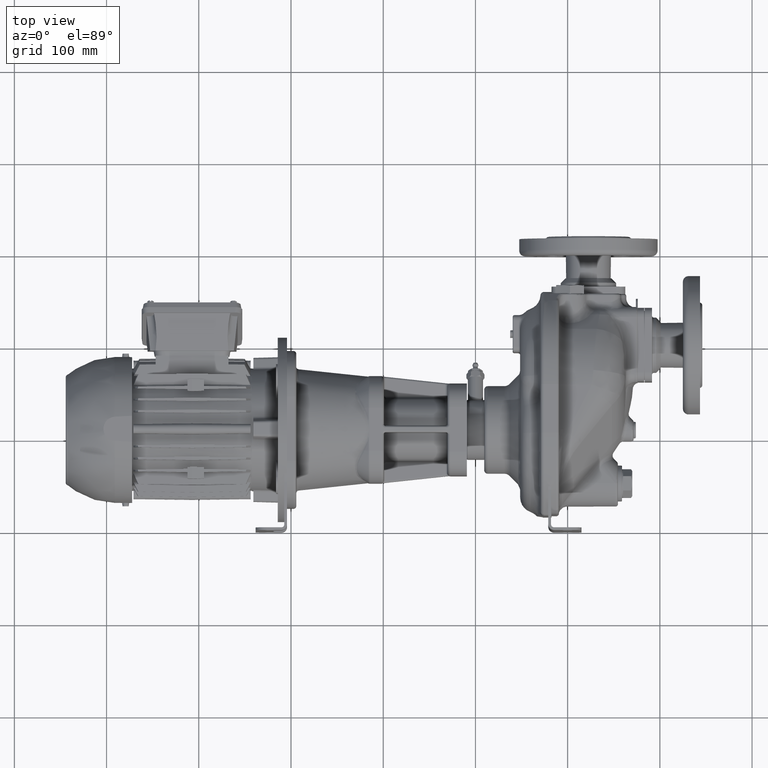
[diagram: clean part render]
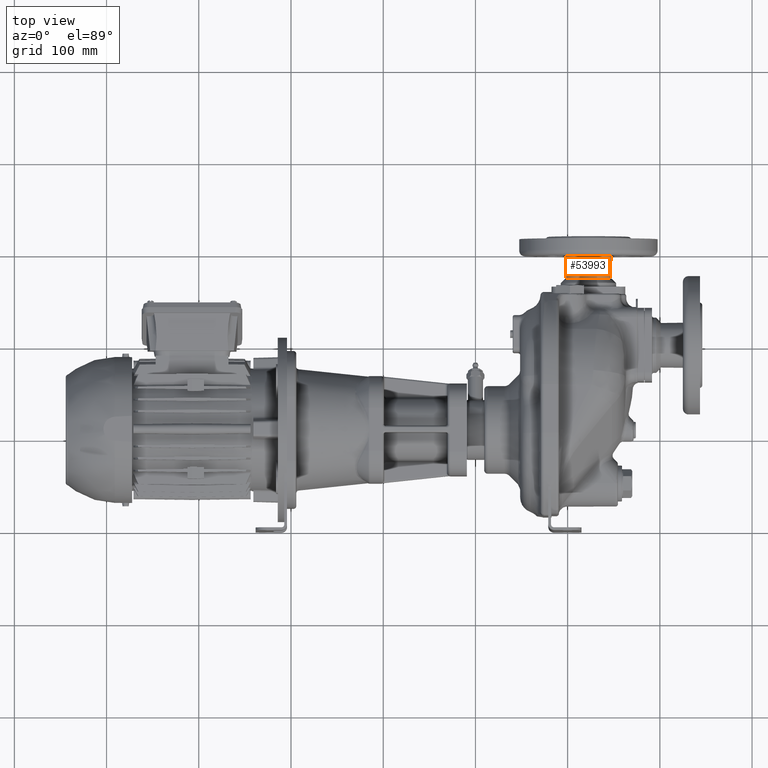
[diagram: same view with one face highlighted and labeled with its STEP entity id]
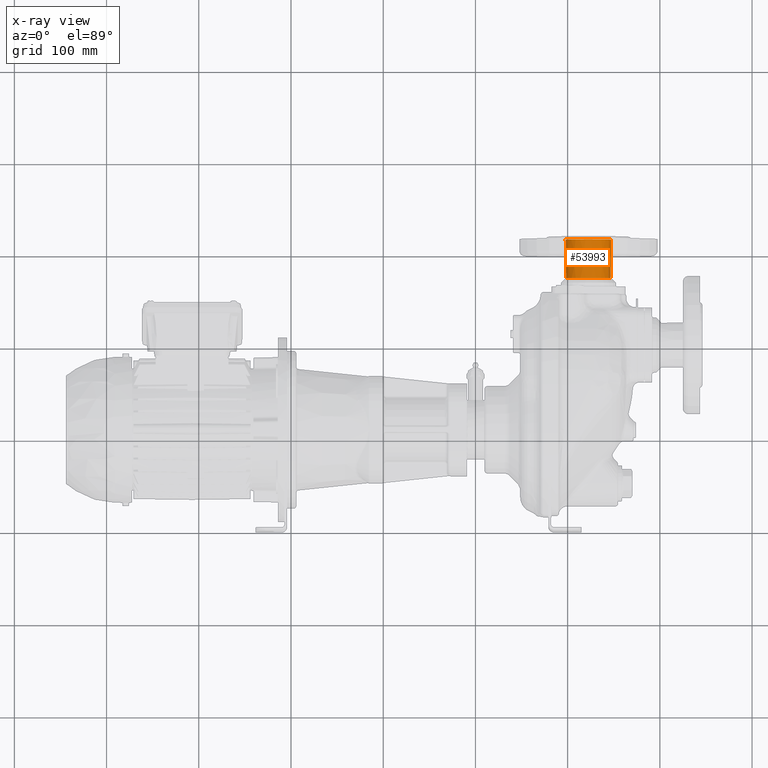
[diagram: x-ray of the same camera — body ghosted, the highlighted face saturated]
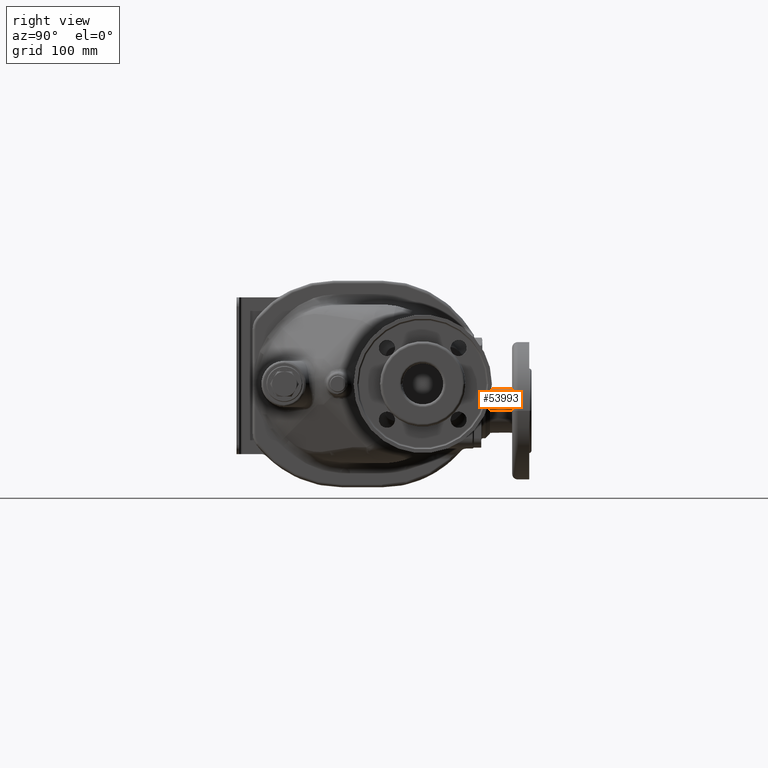
[diagram: same view with one face highlighted and labeled with its STEP entity id]
A machine part, top view. The second image highlights one B-rep face of the part: STEP entity #53993.
The next image is the same camera in x-ray: the body ghosted, the highlighted face saturated — about 0% of this face is hidden behind the body in this view.
A second angle (right view) of the same face is appended — the face is thin or edge-on in the first view.
In plain terms, the highlighted conical surface has half-angle 0.682 deg.
Its self-contained STEP definition (entity closure, byte-faithful):
#6773=CARTESIAN_POINT('',(2.25E1,2.75E2,-3.8E1));
#6774=DIRECTION('',(0.E0,1.E0,0.E0));
#6775=DIRECTION('',(-1.E0,0.E0,0.E0));
#6776=AXIS2_PLACEMENT_3D('',#6773,#6774,#6775);
#6783=CARTESIAN_POINT('',(2.25E1,3.170059515376E2,-3.8E1));
#6784=DIRECTION('',(0.E0,1.E0,0.E0));
#6785=DIRECTION('',(-1.E0,0.E0,0.E0));
#6786=AXIS2_PLACEMENT_3D('',#6783,#6784,#6785);
#6788=DIRECTION('',(-1.190307514028E-2,-9.999291558917E-1,0.E0));
#6789=VECTOR('',#6788,4.200892762259E1);
#6790=CARTESIAN_POINT('',(4.715003542205E1,3.170059515376E2,-3.8E1));
#6791=LINE('',#6790,#6789);
#6797=DIRECTION('',(1.190307514028E-2,-9.999291558917E-1,0.E0));
#6798=VECTOR('',#6797,4.200892762259E1);
#6799=CARTESIAN_POINT('',(-2.150035422054E0,3.170059515376E2,-3.8E1));
#6800=LINE('',#6799,#6798);
#40222=CARTESIAN_POINT('',(-2.150035422054E0,3.170059515376E2,-3.8E1));
#40224=VERTEX_POINT('',#40222);
#40234=CARTESIAN_POINT('',(4.715003542205E1,3.170059515376E2,-3.8E1));
#40236=VERTEX_POINT('',#40234);
#40333=CARTESIAN_POINT('',(-1.65E0,2.75E2,-3.8E1));
#40334=CARTESIAN_POINT('',(4.665E1,2.75E2,-3.8E1));
#40335=VERTEX_POINT('',#40333);
#40336=VERTEX_POINT('',#40334);
#53979=CARTESIAN_POINT('',(2.25E1,2.960029757688E2,-3.8E1));
#53980=DIRECTION('',(0.E0,1.E0,0.E0));
#53981=DIRECTION('',(1.E0,0.E0,0.E0));
#53982=AXIS2_PLACEMENT_3D('',#53979,#53980,#53981);
#53983=CONICAL_SURFACE('',#53982,2.440001771103E1,6.820120743535E-1);
#53984=ORIENTED_EDGE('',*,*,#53972,.F.);
#53986=ORIENTED_EDGE('',*,*,#53985,.F.);
#53988=ORIENTED_EDGE('',*,*,#53987,.T.);
#53990=ORIENTED_EDGE('',*,*,#53989,.T.);
#53991=EDGE_LOOP('',(#53984,#53986,#53988,#53990));
#53992=FACE_OUTER_BOUND('',#53991,.F.);
#53993=ADVANCED_FACE('',(#53992),#53983,.T.);
#6777=CIRCLE('',#6776,2.415E1);
#6787=CIRCLE('',#6786,2.465003542205E1);
#53972=EDGE_CURVE('',#40335,#40336,#6777,.T.);
#53985=EDGE_CURVE('',#40224,#40335,#6800,.T.);
#53987=EDGE_CURVE('',#40224,#40236,#6787,.T.);
#53989=EDGE_CURVE('',#40236,#40336,#6791,.T.);